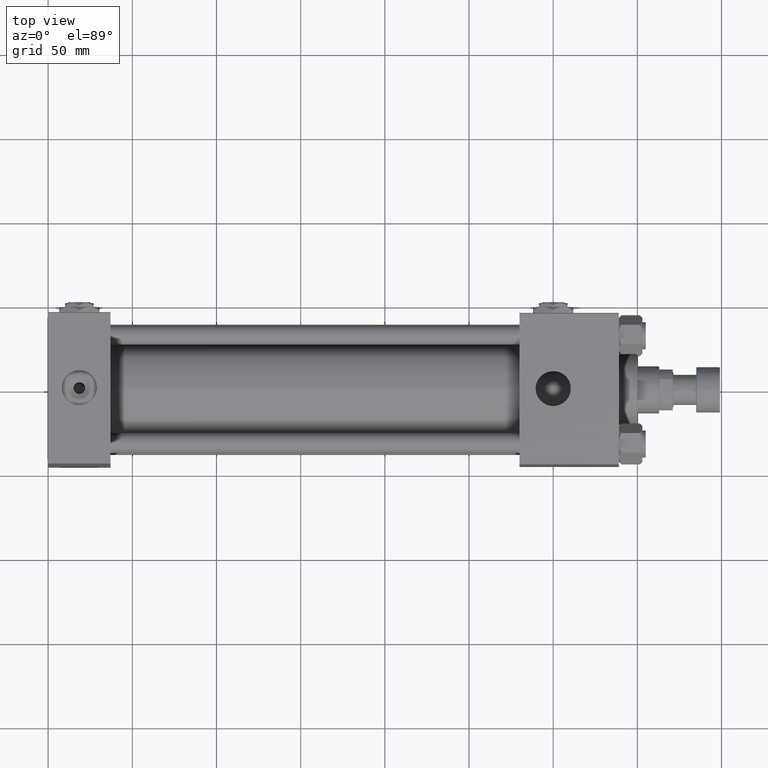
[diagram: clean part render]
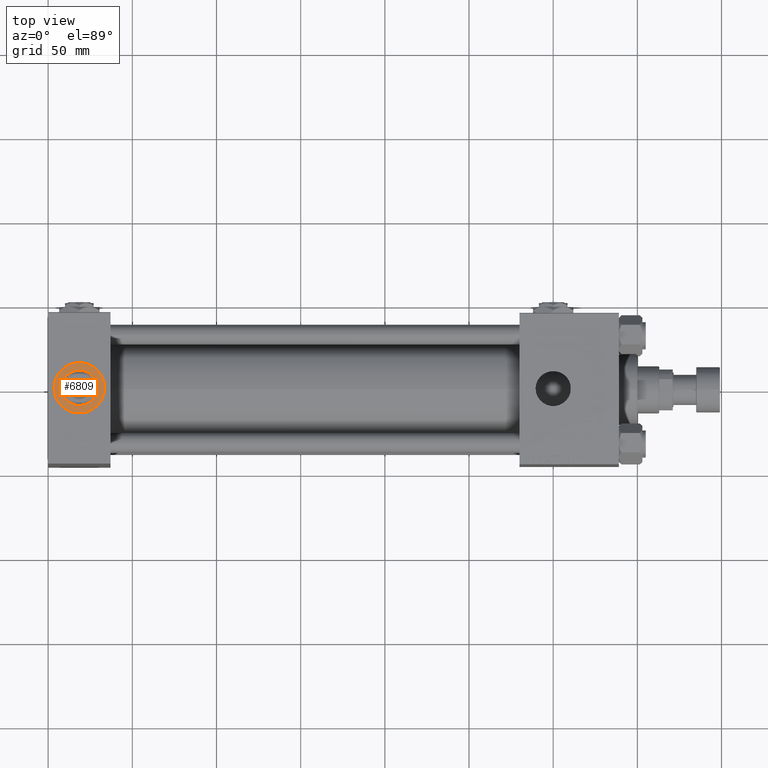
[diagram: same view with one face highlighted and labeled with its STEP entity id]
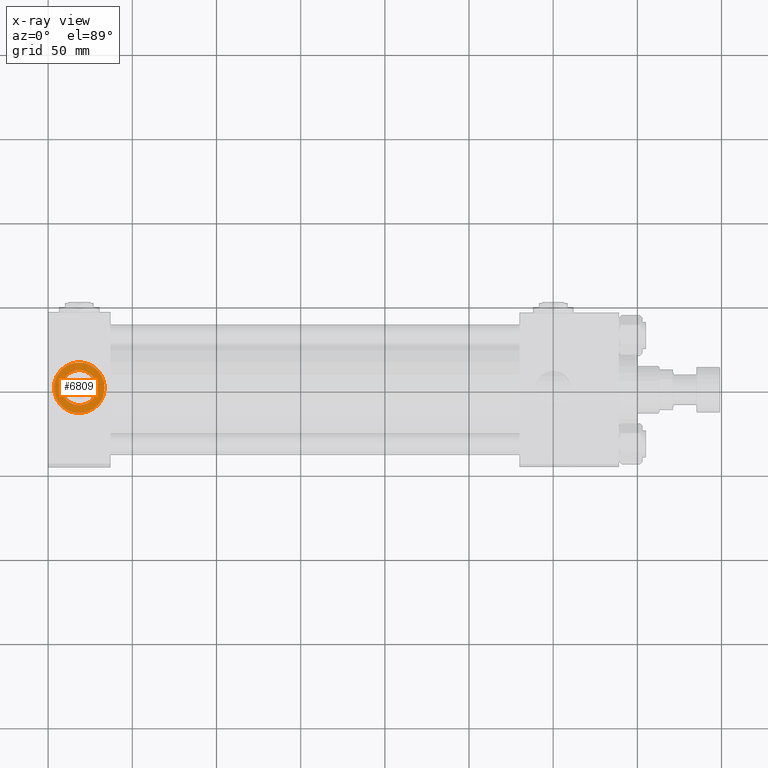
[diagram: x-ray of the same camera — body ghosted, the highlighted face saturated]
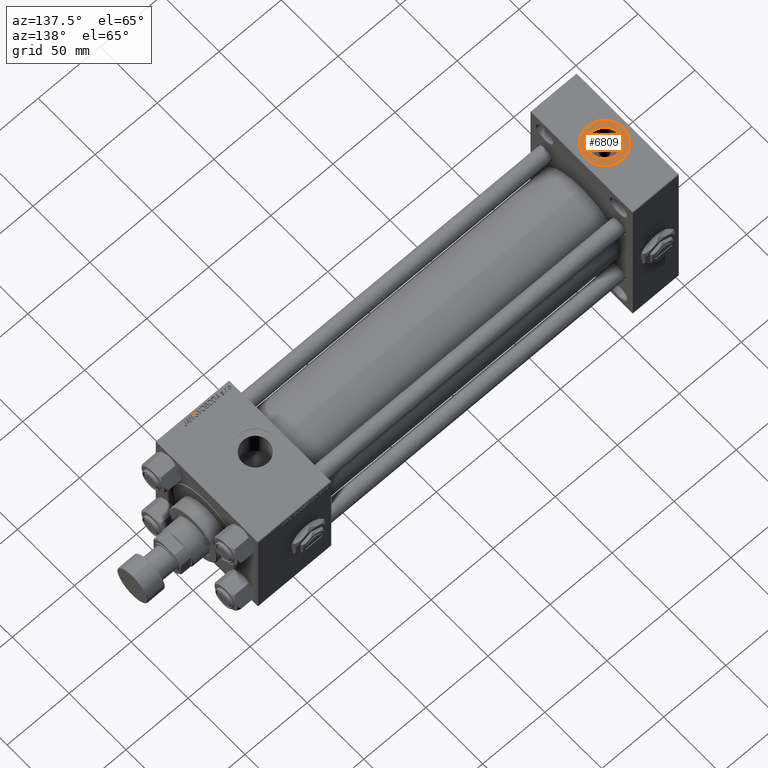
[diagram: same view with one face highlighted and labeled with its STEP entity id]
A machine part, top view. The second image highlights one B-rep face of the part: STEP entity #6809.
The next image is the same camera in x-ray: the body ghosted, the highlighted face saturated — about 0% of this face is hidden behind the body in this view.
A second angle (auxiliary view) of the same face is appended — the face is thin or edge-on in the first view.
In plain terms, the highlighted planar face has unit normal (0, 0, 1).
Its self-contained STEP definition (entity closure, byte-faithful):
#455 = CIRCLE ( 'NONE', #51379, 10.48000000000000043 ) ;
#813 = PLANE ( 'NONE',  #26002 ) ;
#2971 = AXIS2_PLACEMENT_3D ( 'NONE', #42820, #22609, #14894 ) ;
#3109 = ORIENTED_EDGE ( 'NONE', *, *, #18616, .F. ) ;
#3129 = CARTESIAN_POINT ( 'NONE',  ( 18.50000000000000000, -1.268275607991932333E-14, 70.79999999999996874 ) ) ;
#6809 = ADVANCED_FACE ( 'NONE', ( #45222, #9840 ), #813, .T. ) ;
#7886 = ORIENTED_EDGE ( 'NONE', *, *, #22652, .F. ) ;
#9048 = DIRECTION ( 'NONE',  ( 1.000000000000000000, 0.000000000000000000, -0.000000000000000000 ) ) ;
#9840 = FACE_OUTER_BOUND ( 'NONE', #46835, .T. ) ;
#11755 = CARTESIAN_POINT ( 'NONE',  ( 3.499999999999997780, -1.084578588119829295E-14, 70.79999999999996874 ) ) ;
#11996 = CIRCLE ( 'NONE', #34937, 15.00000000000000355 ) ;
#12146 = VERTEX_POINT ( 'NONE', #39054 ) ;
#13162 = CIRCLE ( 'NONE', #2971, 10.48000000000000043 ) ;
#13838 = ORIENTED_EDGE ( 'NONE', *, *, #45388, .T. ) ;
#14894 = DIRECTION ( 'NONE',  ( 1.000000000000000000, 0.000000000000000000, 0.000000000000000000 ) ) ;
#15746 = CARTESIAN_POINT ( 'NONE',  ( 33.50000000000000000, -1.268275607991932333E-14, 70.79999999999996874 ) ) ;
#18616 = EDGE_CURVE ( 'NONE', #33740, #12146, #13162, .T. ) ;
#19099 = VERTEX_POINT ( 'NONE', #15746 ) ;
#22023 = CARTESIAN_POINT ( 'NONE',  ( 18.50000000000000000, -1.268275607991932333E-14, 70.79999999999996874 ) ) ;
#22609 = DIRECTION ( 'NONE',  ( 0.000000000000000000, 0.000000000000000000, 1.000000000000000000 ) ) ;
#22652 = EDGE_CURVE ( 'NONE', #12146, #33740, #455, .T. ) ;
#23060 = DIRECTION ( 'NONE',  ( 1.000000000000000000, 0.000000000000000000, 0.000000000000000000 ) ) ;
#23375 = DIRECTION ( 'NONE',  ( 1.000000000000000000, 0.000000000000000000, 0.000000000000000000 ) ) ;
#26002 = AXIS2_PLACEMENT_3D ( 'NONE', #33250, #49454, #9048 ) ;
#31097 = CARTESIAN_POINT ( 'NONE',  ( 18.50000000000000000, -1.268275607991932333E-14, 70.79999999999996874 ) ) ;
#32099 = DIRECTION ( 'NONE',  ( 1.000000000000000000, 0.000000000000000000, 0.000000000000000000 ) ) ;
#33250 = CARTESIAN_POINT ( 'NONE',  ( 18.50000000000000000, -1.268275607991932333E-14, 70.79999999999996874 ) ) ;
#33717 = EDGE_CURVE ( 'NONE', #41778, #19099, #11996, .T. ) ;
#33740 = VERTEX_POINT ( 'NONE', #52009 ) ;
#34937 = AXIS2_PLACEMENT_3D ( 'NONE', #3129, #48310, #32099 ) ;
#39054 = CARTESIAN_POINT ( 'NONE',  ( 8.019999999999999574, -1.139932623441289626E-14, 70.79999999999996874 ) ) ;
#39079 = DIRECTION ( 'NONE',  ( 0.000000000000000000, 0.000000000000000000, 1.000000000000000000 ) ) ;
#39234 = EDGE_LOOP ( 'NONE', ( #3109, #7886 ) ) ;
#41778 = VERTEX_POINT ( 'NONE', #11755 ) ;
#42820 = CARTESIAN_POINT ( 'NONE',  ( 18.50000000000000000, -1.268275607991932333E-14, 70.79999999999996874 ) ) ;
#42951 = AXIS2_PLACEMENT_3D ( 'NONE', #31097, #39079, #23375 ) ;
#43022 = DIRECTION ( 'NONE',  ( 0.000000000000000000, 0.000000000000000000, 1.000000000000000000 ) ) ;
#45222 = FACE_BOUND ( 'NONE', #39234, .T. ) ;
#45388 = EDGE_CURVE ( 'NONE', #19099, #41778, #50585, .T. ) ;
#46835 = EDGE_LOOP ( 'NONE', ( #13838, #49345 ) ) ;
#48310 = DIRECTION ( 'NONE',  ( 0.000000000000000000, 0.000000000000000000, 1.000000000000000000 ) ) ;
#49345 = ORIENTED_EDGE ( 'NONE', *, *, #33717, .T. ) ;
#49454 = DIRECTION ( 'NONE',  ( 0.000000000000000000, 0.000000000000000000, 1.000000000000000000 ) ) ;
#50585 = CIRCLE ( 'NONE', #42951, 15.00000000000000355 ) ;
#51379 = AXIS2_PLACEMENT_3D ( 'NONE', #22023, #43022, #23060 ) ;
#52009 = CARTESIAN_POINT ( 'NONE',  ( 28.98000000000000043, -1.268275607991932333E-14, 70.79999999999996874 ) ) ;